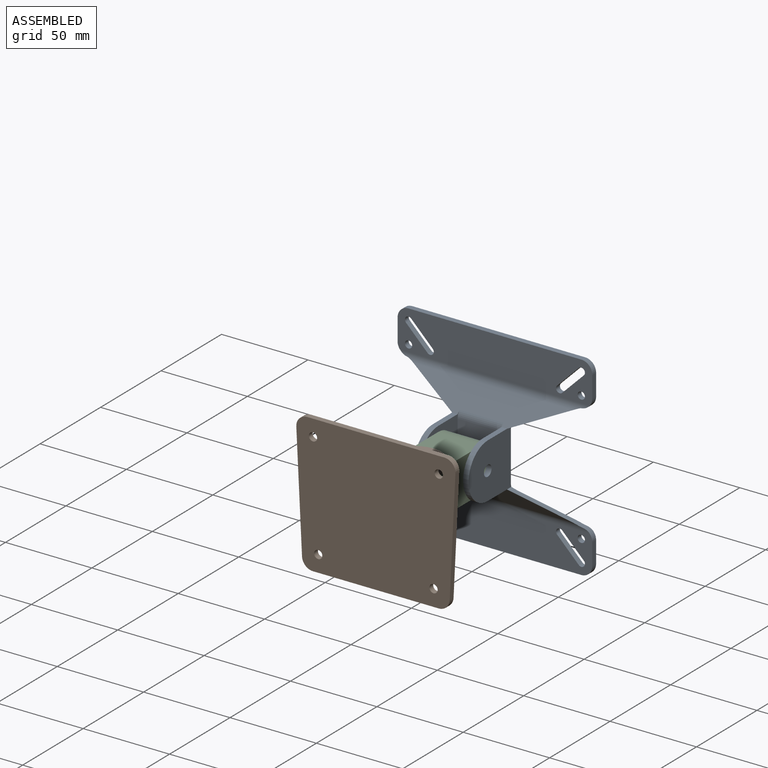
[diagram: assembled view]
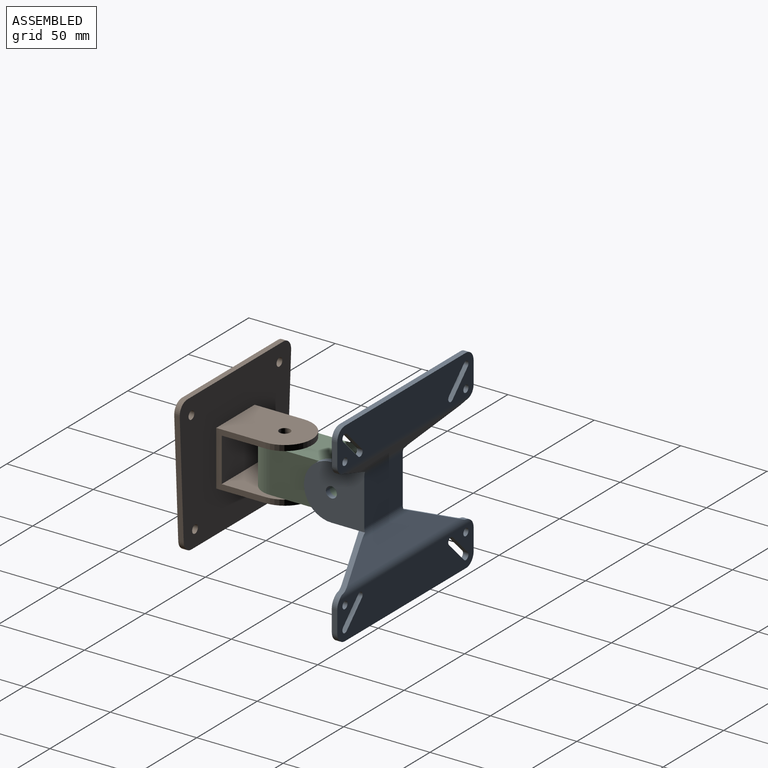
[diagram: assembled view, second angle]
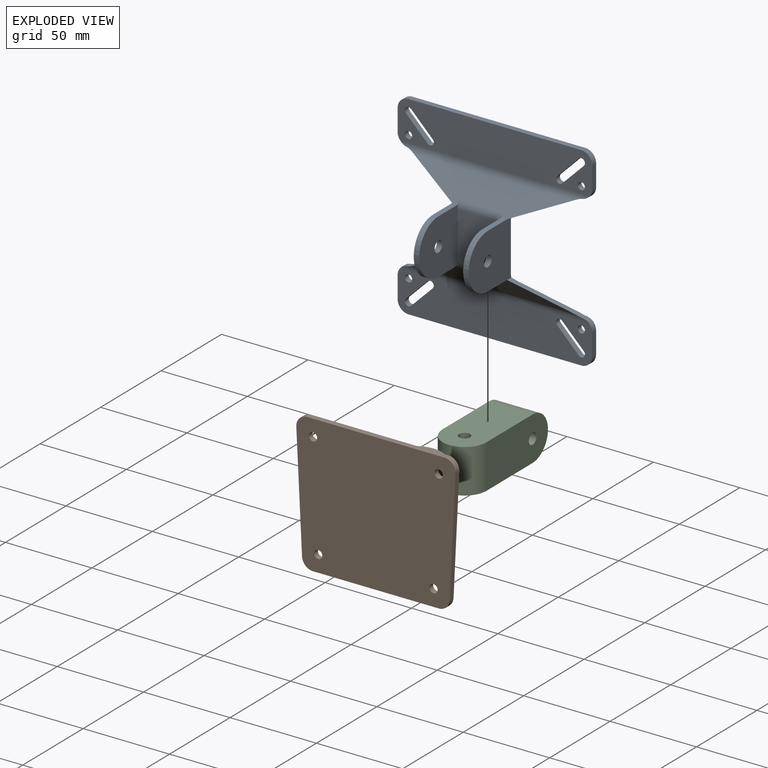
[diagram: exploded view]
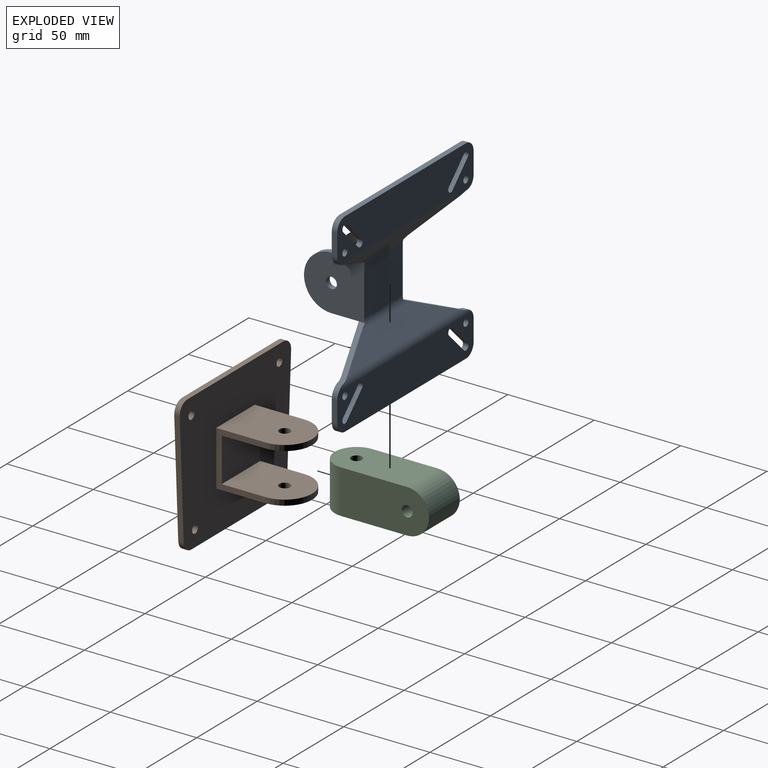
[diagram: exploded view, second angle]
ASSEMBLY  parts=3 mates=2
PART A: 72 faces, bbox 112.7x47.6x112.7 mm
  f0: plane 35.35x31.75mm, normal (1,0,0), area 969.7mm2, adj f4,f6,f9,f11,f12,f53,f58,f64
  f1: plane 27.16x25.4mm, normal (0,-1,0), area 689.9mm2, adj f10,f13,f70,f71
  f2: plane 35.35x31.75mm, normal (-1,0,0), area 969.7mm2, adj f5,f7,f8,f14,f15,f54,f58,f64
  f3: plane 112.7x22.91mm, normal (0,1,0), area 2356.4mm2, adj f35,f36,f37,f38,f39,f40,f41,f42
  f4: plane 33.11x15.25mm, normal (0.41,0,0.91), area 115.8mm2, adj f0,f56,f59,f65,f66,f68,f69
  f5: plane 33.11x15.25mm, normal (-0.41,0,0.91), area 115.8mm2, adj f2,f56,f59,f65,f66,f67,f69
  f6: plane 15.88x3.18mm, normal (0,0,1), area 50.4mm2, adj f0,f10,f11,f55
  f7: plane 15.88x3.18mm, normal (0,0,1), area 50.4mm2, adj f2,f13,f14,f55
  f8: plane 15.88x3.18mm, normal (0,0,-1), area 50.4mm2, adj f2,f13,f14,f59
  f9: plane 15.88x3.18mm, normal (0,0,-1), area 50.4mm2, adj f0,f10,f11,f59
  f10: plane 35.28x33.22mm, normal (-1,0,0), area 869.4mm2, adj f1,f6,f9,f11,f12,f55,f59,f70
  f11: cylinder r=15.88mm len=31.75mm, axis (-1,0,0), area 158.3mm2, adj f0,f6,f9,f10
  f12: cylinder r=3.17mm len=6.35mm, axis (-1,0,0), area 63.3mm2, adj f0,f10
  f13: plane 35.28x33.22mm, normal (1,0,0), area 869.4mm2, adj f1,f7,f8,f14,f15,f55,f59,f70
  f14: cylinder r=15.88mm len=31.75mm, axis (1,0,0), area 158.3mm2, adj f2,f7,f8,f13
  f15: cylinder r=3.17mm len=6.35mm, axis (1,0,0), area 63.3mm2, adj f2,f13
  f16: plane 12.5x3.18mm, normal (1,0,0), area 39.7mm2, adj f17,f32,f33,f34
  f17: cylinder r=6.35mm len=6.3mm, axis (0,1,0), area 29.2mm2, adj f16,f33,f34,f60,f62,f63
  f18: cylinder r=6.35mm len=6.3mm, axis (0,1,0), area 29.2mm2, adj f19,f33,f34,f60,f61,f63
  f19: plane 12.5x3.18mm, normal (-1,0,0), area 39.7mm2, adj f18,f20,f33,f34
  f20: cylinder r=6.35mm len=6.35mm, axis (0,1,0), area 31.7mm2, adj f19,f21,f33,f34
  f21: plane 100x3.18mm, normal (0,0,1), area 317.5mm2, adj f20,f32,f33,f34
  f22: cylinder r=2.1mm len=3.59mm, axis (0,1,0), area 20.9mm2, adj f23,f28,f33,f34
  f23: plane 12.5x12.5mm, normal (-0.71,0,-0.71), area 56.1mm2, adj f22,f24,f33,f34
  f24: cylinder r=2.1mm len=3.59mm, axis (0,1,0), area 20.9mm2, adj f23,f28,f33,f34
  f25: cylinder r=2.1mm len=3.59mm, axis (0,1,0), area 20.9mm2, adj f26,f29,f33,f34
  f26: plane 12.5x12.5mm, normal (-0.71,0,0.71), area 56.1mm2, adj f25,f27,f33,f34
  f27: cylinder r=2.1mm len=3.59mm, axis (0,1,0), area 20.9mm2, adj f26,f29,f33,f34
  f28: plane 12.5x12.5mm, normal (0.71,0,0.71), area 56.1mm2, adj f22,f24,f33,f34
  f29: plane 12.5x12.5mm, normal (0.71,0,-0.71), area 56.1mm2, adj f25,f27,f33,f34
  f30: cylinder r=2.1mm len=4.2mm, axis (0,1,0), area 41.9mm2, adj f33,f34
  f31: cylinder r=2.1mm len=4.2mm, axis (0,1,0), area 41.9mm2, adj f33,f34
  f32: cylinder r=6.35mm len=6.35mm, axis (0,1,0), area 31.7mm2, adj f16,f21,f33,f34
  f33: plane 112.7x22.91mm, normal (0,-1,0), area 2356.4mm2, adj f16,f17,f18,f19,f20,f21,f22,f23
  f34: plane 112.7x22.91mm, normal (0,1,0), area 2356.4mm2, adj f16,f17,f18,f19,f20,f21,f22,f23
  f35: plane 12.5x3.18mm, normal (1,0,0), area 39.7mm2, adj f3,f36,f51,f52
  f36: cylinder r=6.35mm len=6.35mm, axis (0,1,0), area 31.7mm2, adj f3,f35,f37,f52
  f37: plane 100x3.18mm, normal (0,0,-1), area 317.5mm2, adj f3,f36,f38,f52
  f38: cylinder r=6.35mm len=6.35mm, axis (0,1,0), area 31.7mm2, adj f3,f37,f39,f52
  f39: plane 12.5x3.18mm, normal (-1,0,0), area 39.7mm2, adj f3,f38,f40,f52
  f40: cylinder r=6.35mm len=6.3mm, axis (0,1,0), area 29.2mm2, adj f3,f39,f52,f66,f67,f69
  f41: cylinder r=2.1mm len=3.59mm, axis (0,1,0), area 20.9mm2, adj f3,f42,f47,f52
  f42: plane 12.5x12.5mm, normal (0.71,0,0.71), area 56.1mm2, adj f3,f41,f43,f52
  f43: cylinder r=2.1mm len=3.59mm, axis (0,1,0), area 20.9mm2, adj f3,f42,f47,f52
  f44: cylinder r=2.1mm len=3.59mm, axis (0,1,0), area 20.9mm2, adj f3,f45,f48,f52
  f45: plane 12.5x12.5mm, normal (0.71,0,-0.71), area 56.1mm2, adj f3,f44,f46,f52
  f46: cylinder r=2.1mm len=3.59mm, axis (0,1,0), area 20.9mm2, adj f3,f45,f48,f52
  f47: plane 12.5x12.5mm, normal (-0.71,0,-0.71), area 56.1mm2, adj f3,f41,f43,f52
  f48: plane 12.5x12.5mm, normal (-0.71,0,0.71), area 56.1mm2, adj f3,f44,f46,f52
  f49: cylinder r=2.1mm len=4.2mm, axis (0,1,0), area 41.9mm2, adj f3,f52
  f50: cylinder r=2.1mm len=4.2mm, axis (0,1,0), area 41.9mm2, adj f3,f52
  f51: cylinder r=6.35mm len=6.3mm, axis (0,1,0), area 29.2mm2, adj f3,f35,f52,f66,f68,f69
  f52: plane 112.7x22.91mm, normal (0,-1,0), area 2356.4mm2, adj f35,f36,f37,f38,f39,f40,f41,f42
  f53: plane 33.11x15.25mm, normal (0.41,0,-0.91), area 115.8mm2, adj f0,f55,f57,f60,f62,f63,f64
  f54: plane 33.11x15.25mm, normal (-0.41,0,-0.91), area 115.8mm2, adj f2,f55,f57,f60,f61,f63,f64
  f55: plane 92.12x13.51mm, normal (0,-0.77,0.64), area 1029.9mm2, adj f6,f7,f10,f13,f53,f54,f60,f71
  f56: plane 92.12x11.75mm, normal (0,0.77,0.64), area 1006.2mm2, adj f4,f5,f65,f69
  f57: plane 92.12x11.75mm, normal (0,0.77,-0.64), area 1006.2mm2, adj f53,f54,f63,f64
  f58: plane 31.75x27.16mm, normal (0,1,0), area 862.3mm2, adj f0,f2,f64,f65
  f59: plane 92.12x13.51mm, normal (0,-0.77,-0.64), area 1029.9mm2, adj f4,f5,f8,f9,f10,f13,f66,f70
  f60: cylinder r=6.35mm len=109.77mm, axis (-1,0,0), area 448.1mm2, adj f17,f18,f33,f53,f54,f55,f61,f62
  f61: cylinder r=6.35mm len=3.39mm, axis (0,1,0), area 6mm2, adj f18,f54,f60,f63
  f62: cylinder r=6.35mm len=3.39mm, axis (0,1,0), area 6mm2, adj f17,f53,f60,f63
  f63: cylinder r=6.35mm len=109.77mm, axis (-1,0,0), area 448.1mm2, adj f17,f18,f34,f53,f54,f57,f61,f62
  f64: cylinder r=6.35mm len=39.64mm, axis (1,0,0), area 148.2mm2, adj f0,f2,f53,f54,f57,f58
  f65: cylinder r=6.35mm len=39.64mm, axis (-1,0,0), area 148.2mm2, adj f0,f2,f4,f5,f56,f58
  f66: cylinder r=6.35mm len=109.77mm, axis (1,0,0), area 448.1mm2, adj f4,f5,f40,f51,f52,f59,f67,f68
  f67: cylinder r=6.35mm len=3.39mm, axis (0,1,0), area 6mm2, adj f5,f40,f66,f69
  f68: cylinder r=6.35mm len=3.39mm, axis (0,1,0), area 6mm2, adj f4,f51,f66,f69
  f69: cylinder r=6.35mm len=109.77mm, axis (1,0,0), area 448.1mm2, adj f3,f4,f5,f40,f51,f56,f67,f68
  f70: cylinder r=6.35mm len=25.4mm, axis (-1,0,0), area 111.9mm2, adj f1,f10,f13,f59
  f71: cylinder r=6.35mm len=25.4mm, axis (1,0,0), area 111.9mm2, adj f1,f10,f13,f55
PART B: 25 faces, bbox 92.1x47.6x79.8 mm
  f0: plane 41.28x31.75mm, normal (0,0,-1), area 1170.6mm2, adj f1,f2,f3,f4,f6
  f1: plane 31.75x28.58mm, normal (-1,0,0), area 262.1mm2, adj f0,f2,f5,f6,f7,f8,f10,f23
  f2: cylinder r=15.88mm len=31.75mm, axis (0,0,-1), area 158.3mm2, adj f0,f1,f3,f5
  f3: plane 31.75x28.58mm, normal (1,0,0), area 262.1mm2, adj f0,f2,f5,f6,f7,f8,f10,f23
  f4: cylinder r=3.17mm len=6.35mm, axis (0,0,-1), area 63.3mm2, adj f0,f5
  f5: plane 44.45x31.75mm, normal (0,0,1), area 1271.5mm2, adj f1,f2,f3,f4,f23
  f6: plane 31.75x25.4mm, normal (0,1,0), area 806.4mm2, adj f0,f1,f3,f7
  f7: plane 41.28x31.75mm, normal (0,0,1), area 1170.6mm2, adj f1,f3,f6,f8,f9
  f8: cylinder r=15.88mm len=31.75mm, axis (0,0,1), area 158.3mm2, adj f1,f3,f7,f10
  f9: cylinder r=3.17mm len=6.35mm, axis (0,0,1), area 63.3mm2, adj f7,f10
  f10: plane 44.45x31.75mm, normal (0,0,-1), area 1271.5mm2, adj f1,f3,f8,f9,f23
  f11: plane 67.11x3.31mm, normal (-1,0,-0.05), area 213.3mm2, adj f12,f22,f23,f24
  f12: cylinder r=6.35mm len=6.66mm, axis (0,-1,0), area 32.7mm2, adj f11,f13,f23,f24
  f13: plane 79.43x3.18mm, normal (0,0,1), area 252.2mm2, adj f12,f14,f23,f24
  f14: cylinder r=6.35mm len=6.66mm, axis (0,-1,0), area 32.7mm2, adj f13,f15,f23,f24
  f15: plane 67.11x3.31mm, normal (1,0,-0.05), area 213.3mm2, adj f14,f16,f23,f24
  f16: cylinder r=6.35mm len=6.34mm, axis (0,-1,0), area 30.7mm2, adj f15,f17,f23,f24
  f17: plane 72.81x3.18mm, normal (0,0,-1), area 231.2mm2, adj f16,f22,f23,f24
  f18: cylinder r=2.38mm len=4.76mm, axis (0,-1,0), area 47.5mm2, adj f23,f24
  f19: cylinder r=2.38mm len=4.76mm, axis (0,-1,0), area 47.5mm2, adj f23,f24
  f20: cylinder r=2.38mm len=4.76mm, axis (0,-1,0), area 47.5mm2, adj f23,f24
  f21: cylinder r=2.38mm len=4.76mm, axis (0,-1,0), area 47.5mm2, adj f23,f24
  f22: cylinder r=6.35mm len=6.34mm, axis (0,-1,0), area 30.7mm2, adj f11,f17,f23,f24
  f23: plane 92.13x79.81mm, normal (0,1,0), area 5976.1mm2, adj f1,f3,f5,f10,f11,f12,f13,f14
  f24: plane 92.13x79.81mm, normal (0,-1,0), area 6984.1mm2, adj f11,f12,f13,f14,f15,f16,f17,f18
PART C: 8 faces, bbox 25.4x63.5x25.4 mm
  f0: plane 50.8x25.4mm, normal (0,0,1), area 1189.4mm2, adj f2,f4,f5,f6,f7
  f1: plane 50.8x25.4mm, normal (0,0,-1), area 1189.4mm2, adj f2,f4,f5,f6,f7
  f2: cylinder r=12.7mm len=25.4mm, axis (-1,0,0), area 1013.4mm2, adj f0,f1,f4,f5
  f3: cylinder r=3.17mm len=25.4mm, axis (-1,0,0), area 506.7mm2, adj f4,f5
  f4: plane 50.8x25.4mm, normal (1,0,0), area 1189.4mm2, adj f0,f1,f2,f3,f6
  f5: plane 50.8x25.4mm, normal (-1,0,0), area 1189.4mm2, adj f0,f1,f2,f3,f6
  f6: cylinder r=12.7mm len=25.4mm, axis (0,0,-1), area 1013.4mm2, adj f0,f1,f4,f5
  f7: cylinder r=3.17mm len=25.4mm, axis (0,0,-1), area 506.7mm2, adj f0,f1
PLACE A at identity
PLACE B at identity fixed
PLACE C at identity
MATE revolute C.f3 <-> A.f12  axis (1,0,0) through (12.7,19.05,0)mm
MATE revolute C.f7 <-> B.f2  axis (0,0,1) through (0,-19.05,12.7)mm
